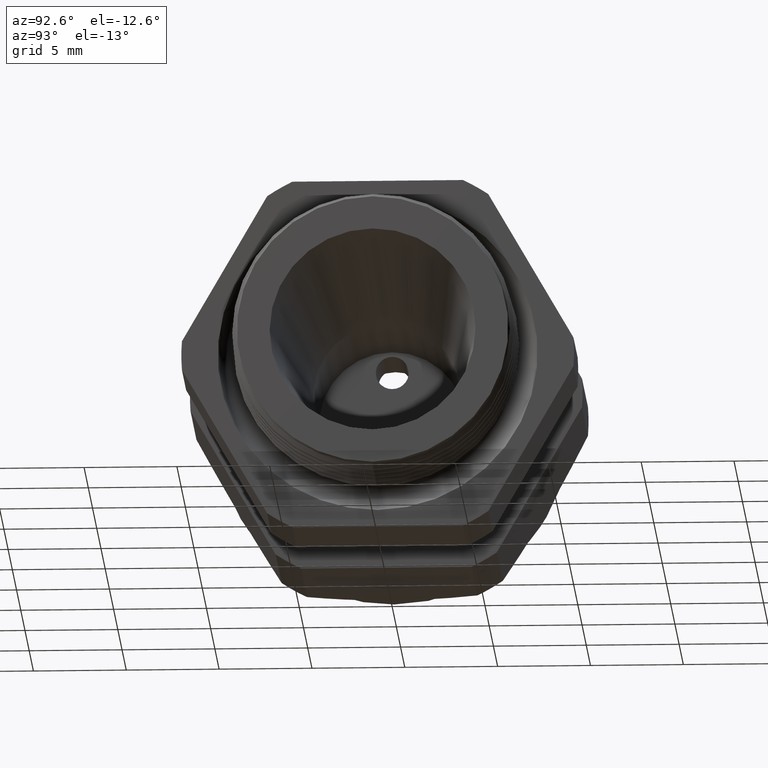
[diagram: clean part render]
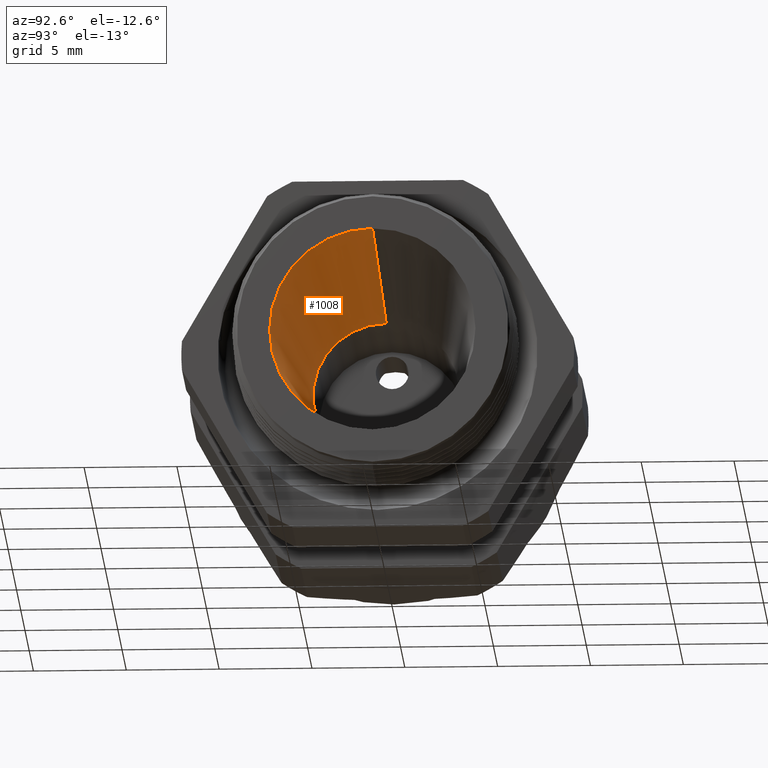
[diagram: same view with one face highlighted and labeled with its STEP entity id]
A machine part, auxiliary view. The second image highlights one B-rep face of the part: STEP entity #1008.
In plain terms, the highlighted conical surface has half-angle 5.634 deg.
Its self-contained STEP definition (entity closure, byte-faithful):
#993 = VERTEX_POINT ( 'NONE', #2847 ) ;
#994 = ORIENTED_EDGE ( 'NONE', *, *, #995, .T. ) ;
#995 = EDGE_CURVE ( 'NONE', #993, #996, #2842, .T. ) ;
#996 = VERTEX_POINT ( 'NONE', #2837 ) ;
#997 = ORIENTED_EDGE ( 'NONE', *, *, #998, .F. ) ;
#998 = EDGE_CURVE ( 'NONE', #1015, #996, #2836, .T. ) ;
#1007 = ORIENTED_EDGE ( 'NONE', *, *, #1016, .F. ) ;
#1008 = ADVANCED_FACE ( 'NONE', ( #2885 ), #2884, .F. ) ;
#1009 = EDGE_LOOP ( 'NONE', ( #1007, #1071, #994, #997 ) ) ;
#1012 = VERTEX_POINT ( 'NONE', #2871 ) ;
#1015 = VERTEX_POINT ( 'NONE', #2870 ) ;
#1016 = EDGE_CURVE ( 'NONE', #1012, #1015, #2869, .T. ) ;
#1071 = ORIENTED_EDGE ( 'NONE', *, *, #1072, .T. ) ;
#1072 = EDGE_CURVE ( 'NONE', #1012, #993, #2958, .T. ) ;
#2833 = DIRECTION ( 'NONE',  ( 0.9951697914271596700, 0.0000000000000000000, -0.09816866216274559900 ) ) ;
#2834 = VECTOR ( 'NONE', #2833, 39.37007874015748900 ) ;
#2835 = CARTESIAN_POINT ( 'NONE',  ( -0.7108661417322830200, 0.0000000000000000000, -0.1550000000000000000 ) ) ;
#2836 = LINE ( 'NONE', #2835, #2834 ) ;
#2837 = CARTESIAN_POINT ( 'NONE',  ( -0.06999999999999995100, 0.0000000000000000000, -0.2182183294762555800 ) ) ;
#2838 = DIRECTION ( 'NONE',  ( 0.0000000000000000000, 0.0000000000000000000, -1.000000000000000000 ) ) ;
#2839 = DIRECTION ( 'NONE',  ( 1.000000000000000000, 0.0000000000000000000, 0.0000000000000000000 ) ) ;
#2840 = CARTESIAN_POINT ( 'NONE',  ( -0.06999999999999995100, 0.0000000000000000000, 0.0000000000000000000 ) ) ;
#2841 = AXIS2_PLACEMENT_3D ( 'NONE', #2840, #2839, #2838 ) ;
#2842 = CIRCLE ( 'NONE', #2841, 0.2182183294762555800 ) ;
#2847 = CARTESIAN_POINT ( 'NONE',  ( -0.06999999999999995100, 2.672403787083789400E-017, 0.2182183294762555800 ) ) ;
#2865 = DIRECTION ( 'NONE',  ( 0.0000000000000000000, 0.0000000000000000000, -1.000000000000000000 ) ) ;
#2866 = DIRECTION ( 'NONE',  ( 1.000000000000000000, 0.0000000000000000000, 0.0000000000000000000 ) ) ;
#2867 = CARTESIAN_POINT ( 'NONE',  ( -0.7108661417322830200, 0.0000000000000000000, 0.0000000000000000000 ) ) ;
#2868 = AXIS2_PLACEMENT_3D ( 'NONE', #2867, #2866, #2865 ) ;
#2869 = CIRCLE ( 'NONE', #2868, 0.1550000000000000000 ) ;
#2870 = CARTESIAN_POINT ( 'NONE',  ( -0.7108661417322830200, 0.0000000000000000000, -0.1550000000000000000 ) ) ;
#2871 = CARTESIAN_POINT ( 'NONE',  ( -0.7108661417322830200, 2.285303162881093000E-017, 0.1550000000000000000 ) ) ;
#2879 = DIRECTION ( 'NONE',  ( 0.0000000000000000000, 0.0000000000000000000, -1.000000000000000000 ) ) ;
#2880 = DIRECTION ( 'NONE',  ( 1.000000000000000000, 0.0000000000000000000, 0.0000000000000000000 ) ) ;
#2881 = AXIS2_PLACEMENT_3D ( 'NONE', #2883, #2880, #2879 ) ;
#2883 = CARTESIAN_POINT ( 'NONE',  ( -0.7108661417322830200, 0.0000000000000000000, 0.0000000000000000000 ) ) ;
#2884 = CONICAL_SURFACE ( 'NONE', #2881, 0.1550000000000000000, 0.09832702654942106200 ) ;
#2885 = FACE_OUTER_BOUND ( 'NONE', #1009, .T. ) ;
#2950 = DIRECTION ( 'NONE',  ( 0.9951697914271596700, 1.202219378941842700E-017, 0.09816866216274559900 ) ) ;
#2951 = VECTOR ( 'NONE', #2950, 39.37007874015748900 ) ;
#2952 = CARTESIAN_POINT ( 'NONE',  ( -0.7108661417322830200, 1.898202538678397300E-017, 0.1550000000000000000 ) ) ;
#2958 = LINE ( 'NONE', #2952, #2951 ) ;